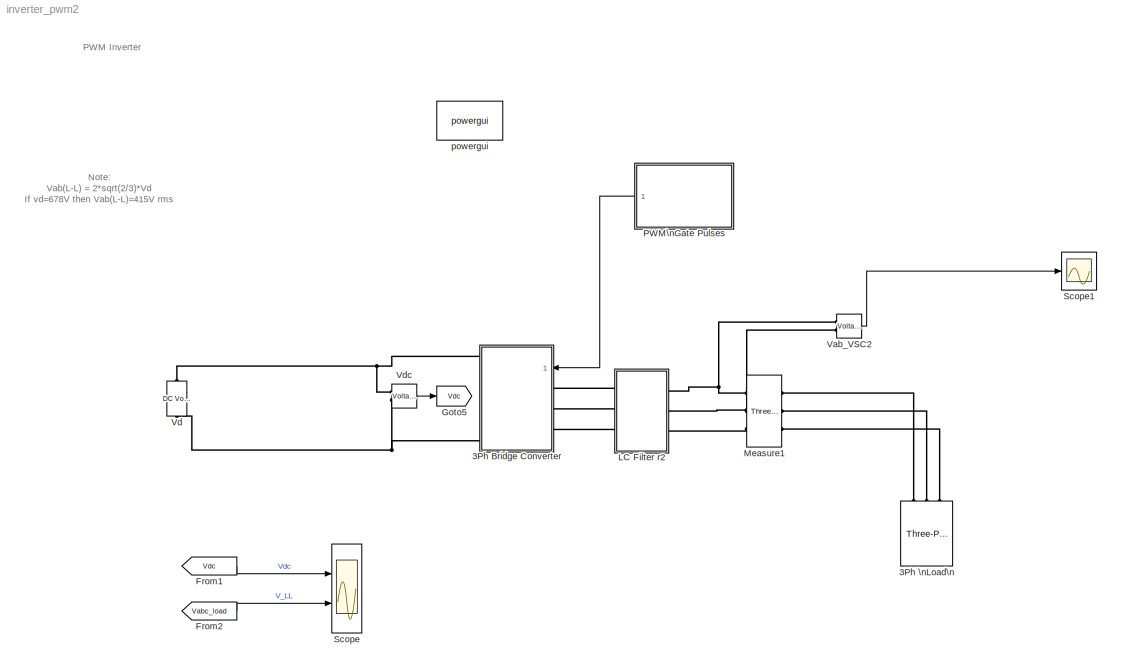
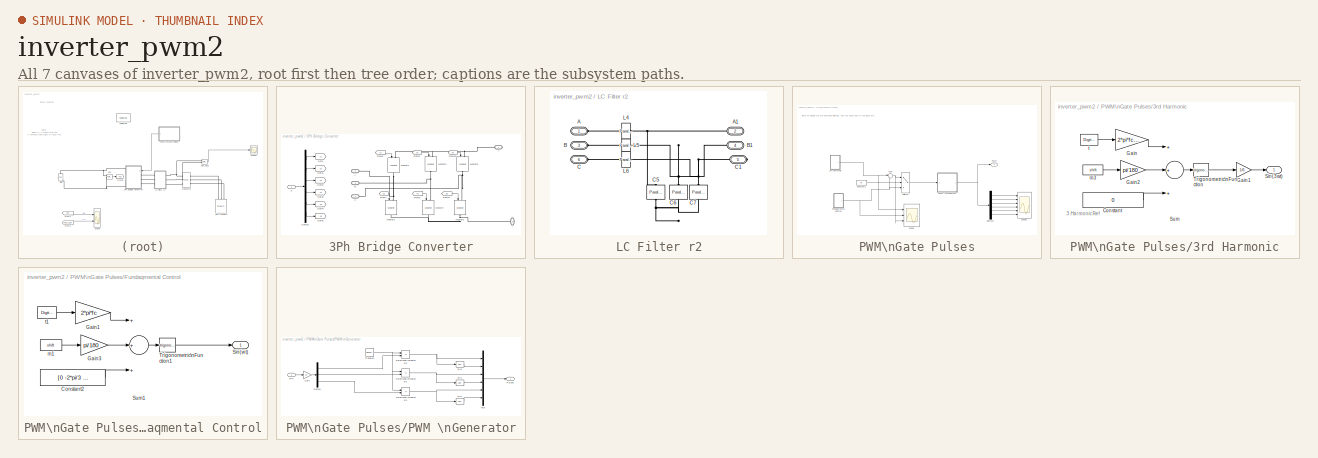
[diagram: thumbnail index - all 7 canvases of the model, root first then tree order]
MODEL inverter_pwm2
KIND model
CONFIG StopFcn = T= ScopeData.time;\nV_DC= ScopeData.signals(1,1).values;\nV_LL=ScopeData2.signals.values;\nsubplot(2,1,1);\nplot(T,V_LL);title('Line to Line Voltage Vab','fontsize',16);xlabel('t');ylabel('V');grid on;\nsubplot(2,1,2);\nplot(T,V_DC);title('DC link Voltage Vdc','fontsize',16);xlabel('t');ylabel('V');grid on;\n
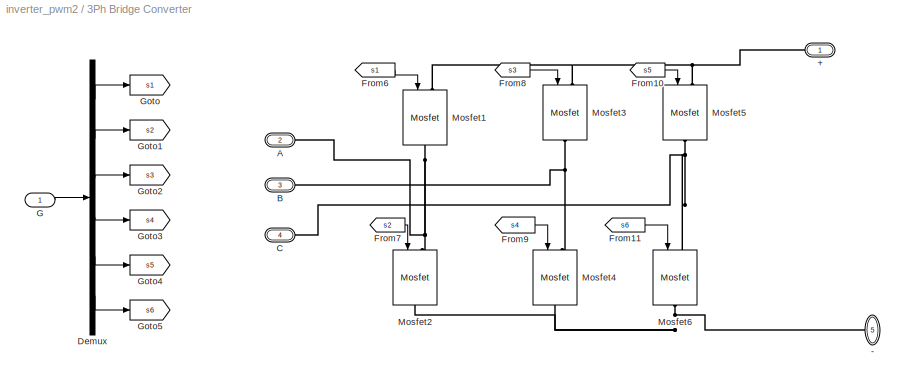
BLOCK [SubSystem] 3Ph Bridge Converter
  Ports = [1, 0, 0, 0, 0, 3, 2]
  RequestExecContextInheritance = off
  SID = 356
BLOCK [PMIOPort] 3Ph Bridge Converter/+
  SID = 377
  Side = Right
BLOCK [PMIOPort] 3Ph Bridge Converter/-
  Port = 5
  SID = 381
  Side = Right
BLOCK [PMIOPort] 3Ph Bridge Converter/A
  Port = 2
  SID = 378
  Side = Left
BLOCK [PMIOPort] 3Ph Bridge Converter/B
  Port = 3
  SID = 379
  Side = Left
BLOCK [PMIOPort] 3Ph Bridge Converter/C
  Port = 4
  SID = 380
  Side = Left
BLOCK [Demux] 3Ph Bridge Converter/Demux
  DisplayOption = bar
  Outputs = 6
  Ports = [1, 6]
  SID = 358
BLOCK [From] 3Ph Bridge Converter/From10
  CloseFcn = tagdialog Close
  GotoTag = s5
  SID = 359
BLOCK [From] 3Ph Bridge Converter/From11
  CloseFcn = tagdialog Close
  GotoTag = s6
  SID = 360
BLOCK [From] 3Ph Bridge Converter/From6
  CloseFcn = tagdialog Close
  GotoTag = s1
  SID = 361
BLOCK [From] 3Ph Bridge Converter/From7
  CloseFcn = tagdialog Close
  GotoTag = s2
  SID = 362
BLOCK [From] 3Ph Bridge Converter/From8
  CloseFcn = tagdialog Close
  GotoTag = s3
  SID = 363
BLOCK [From] 3Ph Bridge Converter/From9
  CloseFcn = tagdialog Close
  GotoTag = s4
  SID = 364
BLOCK [Inport] 3Ph Bridge Converter/G
  IconDisplay = Port number
  SID = 357
BLOCK [Goto] 3Ph Bridge Converter/Goto
  GotoTag = s1
  SID = 365
BLOCK [Goto] 3Ph Bridge Converter/Goto1
  GotoTag = s2
  SID = 366
BLOCK [Goto] 3Ph Bridge Converter/Goto2
  GotoTag = s3
  SID = 367
BLOCK [Goto] 3Ph Bridge Converter/Goto3
  GotoTag = s4
  SID = 368
BLOCK [Goto] 3Ph Bridge Converter/Goto4
  GotoTag = s5
  SID = 369
BLOCK [Goto] 3Ph Bridge Converter/Goto5
  GotoTag = s6
  SID = 370
BLOCK [Reference] 3Ph Bridge Converter/Mosfet1  REF=powerlib/Power\nElectronics/Mosfet
  Cs = inf
  IC = 0
  Lon = 0
  Measurements = off
  Ports = [1, 0, 0, 0, 0, 1, 1]
  Rd = 0.01
  Ron = 0.1
  Rs = 1e5
  SID = 371
  SourceBlock = powerlib/Power\nElectronics/Mosfet
  SourceProductBaseCode = PS
  SourceProductName = Simscape Electrical
  SourceType = Mosfet
  Vfd = 0
BLOCK [Reference] 3Ph Bridge Converter/Mosfet2  REF=powerlib/Power\nElectronics/Mosfet
  Cs = inf
  IC = 0
  Lon = 0
  Measurements = off
  Ports = [1, 0, 0, 0, 0, 1, 1]
  Rd = 0.01
  Ron = 0.1
  Rs = 1e5
  SID = 372
  SourceBlock = powerlib/Power\nElectronics/Mosfet
  SourceProductBaseCode = PS
  SourceProductName = Simscape Electrical
  SourceType = Mosfet
  Vfd = 0
BLOCK [Reference] 3Ph Bridge Converter/Mosfet3  REF=powerlib/Power\nElectronics/Mosfet
  Cs = inf
  IC = 0
  Lon = 0
  Measurements = off
  Ports = [1, 0, 0, 0, 0, 1, 1]
  Rd = 0.01
  Ron = 0.1
  Rs = 1e5
  SID = 375
  SourceBlock = powerlib/Power\nElectronics/Mosfet
  SourceProductBaseCode = PS
  SourceProductName = Simscape Electrical
  SourceType = Mosfet
  Vfd = 0
BLOCK [Reference] 3Ph Bridge Converter/Mosfet4  REF=powerlib/Power\nElectronics/Mosfet
  Cs = inf
  IC = 0
  Lon = 0
  Measurements = off
  Ports = [1, 0, 0, 0, 0, 1, 1]
  Rd = 0.01
  Ron = 0.1
  Rs = 1e5
  SID = 376
  SourceBlock = powerlib/Power\nElectronics/Mosfet
  SourceProductBaseCode = PS
  SourceProductName = Simscape Electrical
  SourceType = Mosfet
  Vfd = 0
BLOCK [Reference] 3Ph Bridge Converter/Mosfet5  REF=powerlib/Power\nElectronics/Mosfet
  Cs = inf
  IC = 0
  Lon = 0
  Measurements = off
  Ports = [1, 0, 0, 0, 0, 1, 1]
  Rd = 0.01
  Ron = 0.1
  Rs = 1e5
  SID = 374
  SourceBlock = powerlib/Power\nElectronics/Mosfet
  SourceProductBaseCode = PS
  SourceProductName = Simscape Electrical
  SourceType = Mosfet
  Vfd = 0
BLOCK [Reference] 3Ph Bridge Converter/Mosfet6  REF=powerlib/Power\nElectronics/Mosfet
  Cs = inf
  IC = 0
  Lon = 0
  Measurements = off
  Ports = [1, 0, 0, 0, 0, 1, 1]
  Rd = 0.01
  Ron = 0.1
  Rs = 1e5
  SID = 373
  SourceBlock = powerlib/Power\nElectronics/Mosfet
  SourceProductBaseCode = PS
  SourceProductName = Simscape Electrical
  SourceType = Mosfet
  Vfd = 0
BLOCK [Reference] 3Ph \nLoad\n  REF=powerlib/Elements/Three-Phase\nParallel RLC Load
  ActivePower = 5e3
  AttributesFormatString = \\n
  CapacitivePower = 0
  Configuration = Y (floating)
  InductivePower = 0
  LConnTagsString = A|B|C
  LoadType = constant Z
  Measurements = None
  NominalFrequency = 50
  NominalVoltage = 415
  Ports = [0, 0, 0, 0, 0, 3]
  SID = 519
  SourceBlock = powerlib/Elements/Three-Phase\nParallel RLC Load
  SourceProductBaseCode = PS
  SourceProductName = Simscape Electrical
  SourceType = Three-Phase Parallel RLC Load
BLOCK [From] From1
  GotoTag = Vdc
  SID = 43
  TagVisibility = global
BLOCK [From] From2
  GotoTag = Vabc_load
  SID = 235
  TagVisibility = global
BLOCK [Goto] Goto5
  GotoTag = Vdc
  SID = 21
  TagVisibility = global
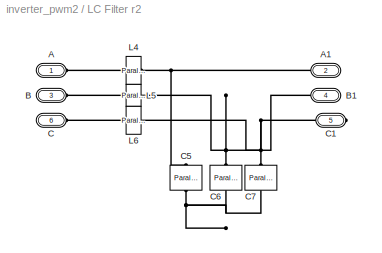
BLOCK [SubSystem] LC Filter r2
  Ports = [0, 0, 0, 0, 0, 3, 3]
  RequestExecContextInheritance = off
  SID = 290
BLOCK [PMIOPort] LC Filter r2/A
  SID = 297
  Side = Left
BLOCK [PMIOPort] LC Filter r2/A1
  Port = 2
  SID = 298
  Side = Right
BLOCK [PMIOPort] LC Filter r2/B
  Port = 3
  SID = 299
  Side = Left
BLOCK [PMIOPort] LC Filter r2/B1
  Port = 4
  SID = 300
  Side = Right
BLOCK [PMIOPort] LC Filter r2/C
  Port = 6
  SID = 302
  Side = Left
BLOCK [PMIOPort] LC Filter r2/C1
  Port = 5
  SID = 301
  Side = Right
BLOCK [Reference] LC Filter r2/C5  REF=powerlib/Elements/Parallel RLC Branch
  AttributesFormatString = \\n
  BranchType = C
  Capacitance = C
  Inductance = inf
  InitialCurrent = 0
  InitialVoltage = 0
  LConnTagsString = a
  Measurements = None
  Ports = [0, 0, 0, 0, 0, 1, 1]
  RConnTagsString = __new0
  Resistance = inf
  SID = 291
  SetiL0 = off
  Setx0 = off
  SourceBlock = powerlib/Elements/Parallel RLC Branch
  SourceProductBaseCode = PS
  SourceProductName = Simscape Electrical
  SourceType = Parallel RLC Branch
BLOCK [Reference] LC Filter r2/C6  REF=powerlib/Elements/Parallel RLC Branch
  AttributesFormatString = \\n
  BranchType = C
  Capacitance = C
  Inductance = inf
  InitialCurrent = 0
  InitialVoltage = 0
  LConnTagsString = a
  Measurements = None
  Ports = [0, 0, 0, 0, 0, 1, 1]
  RConnTagsString = __new0
  Resistance = inf
  SID = 292
  SetiL0 = off
  Setx0 = off
  SourceBlock = powerlib/Elements/Parallel RLC Branch
  SourceProductBaseCode = PS
  SourceProductName = Simscape Electrical
  SourceType = Parallel RLC Branch
BLOCK [Reference] LC Filter r2/C7  REF=powerlib/Elements/Parallel RLC Branch
  AttributesFormatString = \\n
  BranchType = C
  Capacitance = C
  Inductance = inf
  InitialCurrent = 0
  InitialVoltage = 0
  LConnTagsString = a
  Measurements = None
  Ports = [0, 0, 0, 0, 0, 1, 1]
  RConnTagsString = __new0
  Resistance = inf
  SID = 293
  SetiL0 = off
  Setx0 = off
  SourceBlock = powerlib/Elements/Parallel RLC Branch
  SourceProductBaseCode = PS
  SourceProductName = Simscape Electrical
  SourceType = Parallel RLC Branch
BLOCK [Reference] LC Filter r2/L4  REF=powerlib/Elements/Parallel RLC Branch
  AttributesFormatString = \\n
  BranchType = L
  Capacitance = 1.3e-3
  Inductance = L
  InitialCurrent = 0
  InitialVoltage = 0
  LConnTagsString = a
  Measurements = None
  Ports = [0, 0, 0, 0, 0, 1, 1]
  RConnTagsString = __new0
  Resistance = inf
  SID = 294
  SetiL0 = off
  Setx0 = off
  SourceBlock = powerlib/Elements/Parallel RLC Branch
  SourceProductBaseCode = PS
  SourceProductName = Simscape Electrical
  SourceType = Parallel RLC Branch
BLOCK [Reference] LC Filter r2/L5  REF=powerlib/Elements/Parallel RLC Branch
  AttributesFormatString = \\n
  BranchType = L
  Capacitance = 1.3e-3
  Inductance = L
  InitialCurrent = 0
  InitialVoltage = 0
  LConnTagsString = a
  Measurements = None
  Ports = [0, 0, 0, 0, 0, 1, 1]
  RConnTagsString = __new0
  Resistance = inf
  SID = 295
  SetiL0 = off
  Setx0 = off
  SourceBlock = powerlib/Elements/Parallel RLC Branch
  SourceProductBaseCode = PS
  SourceProductName = Simscape Electrical
  SourceType = Parallel RLC Branch
BLOCK [Reference] LC Filter r2/L6  REF=powerlib/Elements/Parallel RLC Branch
  AttributesFormatString = \\n
  BranchType = L
  Capacitance = 1.3e-3
  Inductance = L
  InitialCurrent = 0
  InitialVoltage = 0
  LConnTagsString = a
  Measurements = None
  Ports = [0, 0, 0, 0, 0, 1, 1]
  RConnTagsString = __new0
  Resistance = inf
  SID = 296
  SetiL0 = off
  Setx0 = off
  SourceBlock = powerlib/Elements/Parallel RLC Branch
  SourceProductBaseCode = PS
  SourceProductName = Simscape Electrical
  SourceType = Parallel RLC Branch
BLOCK [Reference] Measure1  REF=powerlib/Measurements/Three-Phase\nV-I Measurement
  CurrentMeasurement = no
  Ipu = off
  LabelI = I1
  LabelV = Vabc_load
  OutputType = Magnitude
  PSBequivalent = 0
  Pbase = 1e3
  PhasorSimulation = off
  Ports = [0, 0, 0, 0, 0, 3, 3]
  SID = 205
  SetLabelI = off
  SetLabelV = on
  SourceBlock = powerlib/Measurements/Three-Phase\nV-I Measurement
  SourceProductBaseCode = PS
  SourceProductName = Simscape Electrical
  SourceType = Three-Phase VI Measurement
  Vbase = 380
  VoltageMeasurement = phase-to-phase
  Vpu = off
  VpuLL = off
BLOCK [SubSystem] PWM\nGate Pulses
  Ports = [0, 1]
  RequestExecContextInheritance = off
  SID = 382
BLOCK [SubSystem] PWM\nGate Pulses/3rd Harmonic
  Ports = [0, 1]
  RequestExecContextInheritance = off
  SID = 529
BLOCK [Constant] PWM\nGate Pulses/3rd Harmonic/Constant
  SID = 530
  SampleTime = Ts
  Value = 0
BLOCK [Gain] PWM\nGate Pulses/3rd Harmonic/Gain
  Gain = 2*pi*fc*3
  SID = 531
BLOCK [Gain] PWM\nGate Pulses/3rd Harmonic/Gain1
  Gain = 1/6
  OutDataTypeStr = Inherit: Inherit via internal rule
  ParamDataTypeStr = Inherit: Inherit via internal rule
  SID = 532
  SaturateOnIntegerOverflow = off
BLOCK [Gain] PWM\nGate Pulses/3rd Harmonic/Gain2
  Gain = pi/180
  SID = 533
BLOCK [Outport] PWM\nGate Pulses/3rd Harmonic/Sin(3wt)
  IconDisplay = Port number
  SID = 538
BLOCK [Sum] PWM\nGate Pulses/3rd Harmonic/Sum
  Inputs = +++
  Ports = [3, 1]
  SID = 534
  SampleTime = Ts
BLOCK [Trigonometry] PWM\nGate Pulses/3rd Harmonic/Trigonometric\nFunction
  Ports = [1, 1]
  SID = 535
  SampleTime = Ts
BLOCK [Constant] PWM\nGate Pulses/3rd Harmonic/m3
  SID = 536
  SampleTime = Ts
  Value = shift
BLOCK [DigitalClock] PWM\nGate Pulses/3rd Harmonic/t
  SID = 537
  SampleTime = Ts
BLOCK [Constant] PWM\nGate Pulses/Constant1
  SID = 540
  SampleTime = Ts
  Value = inj
BLOCK [Demux] PWM\nGate Pulses/Demux1
  DisplayOption = bar
  Outputs = 6
  Ports = [1, 6]
  SID = 472
BLOCK [SubSystem] PWM\nGate Pulses/Fundaqmental Control
  Ports = [0, 1]
  RequestExecContextInheritance = off
  SID = 541
BLOCK [Constant] PWM\nGate Pulses/Fundaqmental Control/Constant2
  SID = 542
  SampleTime = Ts
  Value = [0 -2*pi/3 2*pi/3]
BLOCK [Gain] PWM\nGate Pulses/Fundaqmental Control/Gain1
  Gain = 2*pi*fc
  SID = 543
BLOCK [Gain] PWM\nGate Pulses/Fundaqmental Control/Gain3
  Gain = pi/180
  SID = 544
BLOCK [Outport] PWM\nGate Pulses/Fundaqmental Control/Sin(wt)
  IconDisplay = Port number
  SID = 549
BLOCK [Sum] PWM\nGate Pulses/Fundaqmental Control/Sum1
  Inputs = +++
  Ports = [3, 1]
  SID = 545
  SampleTime = Ts
BLOCK [Trigonometry] PWM\nGate Pulses/Fundaqmental Control/Trigonometric\nFunction1
  Ports = [1, 1]
  SID = 546
  SampleTime = Ts
BLOCK [Constant] PWM\nGate Pulses/Fundaqmental Control/m1
  SID = 547
  SampleTime = Ts
  Value = shift
BLOCK [DigitalClock] PWM\nGate Pulses/Fundaqmental Control/t1
  SID = 548
  SampleTime = Ts
BLOCK [Outport] PWM\nGate Pulses/PWM
  IconDisplay = Port number
  SID = 489
BLOCK [SubSystem] PWM\nGate Pulses/PWM \nGenerator
  InitFcn = Ts=2e-6
  Ports = [1, 1]
  RequestExecContextInheritance = off
  SID = 474
BLOCK [Inport] PWM\nGate Pulses/PWM \nGenerator/3Ph
  IconDisplay = Port number
  SID = 475
BLOCK [Logic] PWM\nGate Pulses/PWM \nGenerator/BL1
  Inputs = 1
  Operator = NOT
  Ports = [1, 1]
  SID = 476
  SampleTime = Ts
BLOCK [Logic] PWM\nGate Pulses/PWM \nGenerator/BL2
  Inputs = 1
  Operator = NOT
  Ports = [1, 1]
  SID = 477
  SampleTime = Ts
BLOCK [Logic] PWM\nGate Pulses/PWM \nGenerator/BL5
  Inputs = 1
  Operator = NOT
  Ports = [1, 1]
  SID = 478
  SampleTime = Ts
BLOCK [Demux] PWM\nGate Pulses/PWM \nGenerator/Demux
  DisplayOption = bar
  Outputs = 3
  Ports = [1, 3]
  SID = 479
BLOCK [Gain] PWM\nGate Pulses/PWM \nGenerator/Gain
  Gain = m
  OutDataTypeStr = Inherit: Inherit via internal rule
  ParamDataTypeStr = Inherit: Inherit via internal rule
  SID = 480
  SaturateOnIntegerOverflow = off
BLOCK [Mux] PWM\nGate Pulses/PWM \nGenerator/Mux
  DisplayOption = bar
  Inputs = 6
  Ports = [6, 1]
  SID = 481
BLOCK [Outport] PWM\nGate Pulses/PWM \nGenerator/Pulses
  IconDisplay = Port number
  SID = 486
BLOCK [RelationalOperator] PWM\nGate Pulses/PWM \nGenerator/Relational\nOperator1
  InputSameDT = off
  Operator = <=
  Ports = [2, 1]
  SID = 482
BLOCK [RelationalOperator] PWM\nGate Pulses/PWM \nGenerator/Relational\nOperator2
  InputSameDT = off
  Operator = <=
  Ports = [2, 1]
  SID = 483
BLOCK [RelationalOperator] PWM\nGate Pulses/PWM \nGenerator/Relational\nOperator3
  InputSameDT = off
  Operator = <=
  Ports = [2, 1]
  SID = 484
BLOCK [Reference] PWM\nGate Pulses/PWM \nGenerator/Triangle2  REF=simulink/Sources/Repeating\nSequence
  Ports = [0, 1]
  SID = 485
  SourceBlock = simulink/Sources/Repeating\nSequence
  SourceProductBaseCode = SL
  SourceProductName = Simulink
  SourceType = Repeating table
  rep_seq_t = [0 1/fs/4 3/fs/4 1/fs]
  rep_seq_y = [0 -1 1 0]
BLOCK [Scope] PWM\nGate Pulses/Scope
  Floating = off
  NumInputPorts = 3
  Ports = [3]
  SID = 550
  ScopeSpecificationString = C++SS(StrPVP('Location','[1, 53, 1921, 1031]'),StrPVP('Open','off'),MxPVP('AxesTitles',54,'struct(''axes1'',''%<SignalLabel>'',''axes2'',''%<SignalLabel>'',''axes3'',''%<SignalLabel>'')'),StrPVP('YMin','-1~-1.25~-5'),StrPVP('YMax','1~1.25~5'),StrPVP('SaveName','ScopeData3'),StrPVP('DataFormat','StructureWithTime'),StrPVP('BlockParamSampleTime','0'),StrPVP('LimitDataPoints','on'),StrPVP('Decimation...<+45ch>
BLOCK [Scope] PWM\nGate Pulses/Scope1
  Floating = off
  NumInputPorts = 6
  Ports = [6]
  SID = 487
  ScopeSpecificationString = C++SS(StrPVP('Location','[188, 390, 512, 629]'),StrPVP('Open','off'),MxPVP('AxesTitles',54,'struct(''axes1'',''%<SignalLabel>'',''axes2'',''%<SignalLabel>'',''axes3'',''%<SignalLabel>'',''axes4'',''%<SignalLabel>'',''axes5'',''%<SignalLabel>'',''axes6'',''%<SignalLabel>'')'),StrPVP('YMin','-5~-5~-5~-5~-5~-5'),StrPVP('YMax','5~5~5~5~5~5'),StrPVP('SaveName','ScopeData1'),StrPVP('DataFormat','Structu...<+143ch>
BLOCK [Sum] PWM\nGate Pulses/Sum
  IconShape = round
  InputSameDT = off
  Inputs = |++
  OutDataTypeStr = Inherit: Inherit via internal rule
  Ports = [2, 1]
  SID = 551
  SaturateOnIntegerOverflow = off
BLOCK [Switch] PWM\nGate Pulses/Switch1
  SID = 552
  SampleTime = Ts
  Threshold = 0.5
BLOCK [Scope] Scope
  Floating = off
  NumInputPorts = 2
  Ports = [2]
  SID = 47
  ScopeSpecificationString = C++SS(StrPVP('Location','[5, 53, 1919, 1031]'),StrPVP('Open','off'),StrPVP('ZoomMode','xonly'),MxPVP('AxesTitles',54,'struct(''axes1'',''%<SignalLabel>'',''axes2'',''%<SignalLabel>'')'),StrPVP('YMin','-5~-5'),StrPVP('YMax','5~5'),StrPVP('SaveToWorkspace','on'),StrPVP('DataFormat','StructureWithTime'),StrPVP('MaxDataPoints','1000000'),StrPVP('BlockParamSampleTime','0'),StrPVP('LimitDataPoints','on'...<+65ch>
BLOCK [Scope] Scope1
  Floating = off
  NumInputPorts = 1
  Ports = [1]
  SID = 204
  ScopeSpecificationString = C++SS(StrPVP('Location','[906, 140, 1742, 879]'),StrPVP('Open','off'),StrPVP('ZoomMode','xonly'),MxPVP('AxesTitles',54,'struct(''axes1'',''%<SignalLabel>'')'),StrPVP('SaveToWorkspace','on'),StrPVP('SaveName','ScopeData2'),StrPVP('DataFormat','StructureWithTime'),StrPVP('LimitDataPoints','off'),StrPVP('BlockParamSampleTime','0'),StrPVP('Decimation','1'),StrPVP('BlockParamSampleInput','off'))
BLOCK [Reference] Vab_VSC2  REF=powerlib/Measurements/Voltage Measurement
  AttributesFormatString = \\n
  OutputType = Magnitude
  PSBequivalent = 0
  PhasorSimulation = off
  Ports = [0, 1, 0, 0, 0, 2]
  SID = 42
  SourceBlock = powerlib/Measurements/Voltage Measurement
  SourceProductBaseCode = PS
  SourceProductName = Simscape Electrical
  SourceType = Voltage Measurement
  Tag = PoWeRsYsTeMmEaSuReMeNt
BLOCK [Reference] Vd  REF=powerlib/Electrical\nSources/DC Voltage Source
  Amplitude = 415*2*sqrt(2/3)
  Measurements = None
  Ports = [0, 0, 0, 0, 0, 1, 1]
  SID = 49
  SourceBlock = powerlib/Electrical\nSources/DC Voltage Source
  SourceProductBaseCode = PS
  SourceProductName = Simscape Electrical
  SourceType = DC Voltage Source
BLOCK [Reference] Vdc   REF=powerlib/Measurements/Voltage Measurement
  AttributesFormatString = \\n
  OutputType = Magnitude
  PSBequivalent = 0
  PhasorSimulation = off
  Ports = [0, 1, 0, 0, 0, 2]
  SID = 23
  SourceBlock = powerlib/Measurements/Voltage Measurement
  SourceProductBaseCode = PS
  SourceProductName = Simscape Electrical
  SourceType = Voltage Measurement
  Tag = PoWeRsYsTeMmEaSuReMeNt
BLOCK [Reference] powergui  REF=powerlib/powergui
  DisableRonSwitches = off
  DisableSnubberDevices = off
  DisableVfSwitches = off
  DisplayEquations = off
  DisplayStyle = 4
  EnableUseOfTLC = off
  ErrMax = 1e-4
  FreqAxis = on
  FunctionMessages = off
  HookPort = off
  Interpol = off
  Iterations = 50
  MaxFrequency = 650
  Pbase = 100e6
  Ports = []
  Priority = 1
  ResistiveCurrentMeasurement = off
  RestoreLinks = warning
  SID = 2
  SPID = on
  SampleTime = 50e-6
  ShowGrid = off
  SolverType = Tustin
  SourceBlock = powerlib/powergui
  SourceProductBaseCode = PS
  SourceProductName = Simscape Electrical
  SourceType = PSB option menu block
  StartTime = 0.6
  SwTol = 0
  UnitsV = kV
  UnitsW = MW
  UserData = DataTag0
  UserDataPersistent = on
  Xlog = on
  Ylog = off
  ZoomFFT = off
  cycles = 4
  display = off
  echomessages = off
  frequency = 60
  frequencyindice = 0
  frequencyindicesteady = 1
  fundamental = 50
  methode = off
  save = off
  structure = ScopeData2
  variable = ZData
  x0status = blocks
ANNOTATION (root): Note:\nVab(L-L) = 2*sqrt(2/3)*Vd\nIf vd=678V then Vab(L-L)=415V rms
ANNOTATION (root): PWM Inverter
ANNOTATION PWM\nGate Pulses: Note:To enable the 3rd Harmonic injection, tick the check box of the block properties
ANNOTATION PWM\nGate Pulses/3rd Harmonic: 3 Harmonic Ref
LINE 3Ph Bridge Converter/Demux:1 -> 3Ph Bridge Converter/Goto:1
LINE 3Ph Bridge Converter/Demux:2 -> 3Ph Bridge Converter/Goto1:1
LINE 3Ph Bridge Converter/Demux:3 -> 3Ph Bridge Converter/Goto2:1
LINE 3Ph Bridge Converter/Demux:4 -> 3Ph Bridge Converter/Goto3:1
LINE 3Ph Bridge Converter/Demux:5 -> 3Ph Bridge Converter/Goto4:1
LINE 3Ph Bridge Converter/Demux:6 -> 3Ph Bridge Converter/Goto5:1
LINE 3Ph Bridge Converter/From10:1 -> 3Ph Bridge Converter/Mosfet5:1
LINE 3Ph Bridge Converter/From11:1 -> 3Ph Bridge Converter/Mosfet6:1
LINE 3Ph Bridge Converter/From6:1 -> 3Ph Bridge Converter/Mosfet1:1
LINE 3Ph Bridge Converter/From7:1 -> 3Ph Bridge Converter/Mosfet2:1
LINE 3Ph Bridge Converter/From8:1 -> 3Ph Bridge Converter/Mosfet3:1
LINE 3Ph Bridge Converter/From9:1 -> 3Ph Bridge Converter/Mosfet4:1
LINE 3Ph Bridge Converter/G:1 -> 3Ph Bridge Converter/Demux:1
LINE From1:1 -> Scope:1
LINE From2:1 -> Scope:2
LINE PWM\nGate Pulses/3rd Harmonic/Constant:1 -> PWM\nGate Pulses/3rd Harmonic/Sum:3
LINE PWM\nGate Pulses/3rd Harmonic/Gain1:1 -> PWM\nGate Pulses/3rd Harmonic/Sin(3wt):1
LINE PWM\nGate Pulses/3rd Harmonic/Gain2:1 -> PWM\nGate Pulses/3rd Harmonic/Sum:2
LINE PWM\nGate Pulses/3rd Harmonic/Gain:1 -> PWM\nGate Pulses/3rd Harmonic/Sum:1
LINE PWM\nGate Pulses/3rd Harmonic/Sum:1 -> PWM\nGate Pulses/3rd Harmonic/Trigonometric\nFunction:1
LINE PWM\nGate Pulses/3rd Harmonic/Trigonometric\nFunction:1 -> PWM\nGate Pulses/3rd Harmonic/Gain1:1
LINE PWM\nGate Pulses/3rd Harmonic/m3:1 -> PWM\nGate Pulses/3rd Harmonic/Gain2:1
LINE PWM\nGate Pulses/3rd Harmonic/t:1 -> PWM\nGate Pulses/3rd Harmonic/Gain:1
NET PWM\nGate Pulses/3rd Harmonic:1 -> PWM\nGate Pulses/Scope:1, PWM\nGate Pulses/Sum:1
LINE PWM\nGate Pulses/Constant1:1 -> PWM\nGate Pulses/Switch1:2
LINE PWM\nGate Pulses/Demux1:1 -> PWM\nGate Pulses/Scope1:1
LINE PWM\nGate Pulses/Demux1:2 -> PWM\nGate Pulses/Scope1:2
LINE PWM\nGate Pulses/Demux1:3 -> PWM\nGate Pulses/Scope1:3
LINE PWM\nGate Pulses/Demux1:4 -> PWM\nGate Pulses/Scope1:4
LINE PWM\nGate Pulses/Demux1:5 -> PWM\nGate Pulses/Scope1:5
LINE PWM\nGate Pulses/Demux1:6 -> PWM\nGate Pulses/Scope1:6
LINE PWM\nGate Pulses/Fundaqmental Control/Constant2:1 -> PWM\nGate Pulses/Fundaqmental Control/Sum1:3
LINE PWM\nGate Pulses/Fundaqmental Control/Gain1:1 -> PWM\nGate Pulses/Fundaqmental Control/Sum1:1
LINE PWM\nGate Pulses/Fundaqmental Control/Gain3:1 -> PWM\nGate Pulses/Fundaqmental Control/Sum1:2
LINE PWM\nGate Pulses/Fundaqmental Control/Sum1:1 -> PWM\nGate Pulses/Fundaqmental Control/Trigonometric\nFunction1:1
LINE PWM\nGate Pulses/Fundaqmental Control/Trigonometric\nFunction1:1 -> PWM\nGate Pulses/Fundaqmental Control/Sin(wt):1
LINE PWM\nGate Pulses/Fundaqmental Control/m1:1 -> PWM\nGate Pulses/Fundaqmental Control/Gain3:1
LINE PWM\nGate Pulses/Fundaqmental Control/t1:1 -> PWM\nGate Pulses/Fundaqmental Control/Gain1:1
NET PWM\nGate Pulses/Fundaqmental Control:1 -> PWM\nGate Pulses/Scope:2, PWM\nGate Pulses/Sum:2, PWM\nGate Pulses/Switch1:3
LINE PWM\nGate Pulses/PWM \nGenerator/3Ph:1 -> PWM\nGate Pulses/PWM \nGenerator/Gain:1
LINE PWM\nGate Pulses/PWM \nGenerator/BL1:1 -> PWM\nGate Pulses/PWM \nGenerator/Mux:4
LINE PWM\nGate Pulses/PWM \nGenerator/BL2:1 -> PWM\nGate Pulses/PWM \nGenerator/Mux:6
LINE PWM\nGate Pulses/PWM \nGenerator/BL5:1 -> PWM\nGate Pulses/PWM \nGenerator/Mux:2
LINE PWM\nGate Pulses/PWM \nGenerator/Demux:1 -> PWM\nGate Pulses/PWM \nGenerator/Relational\nOperator2:2
LINE PWM\nGate Pulses/PWM \nGenerator/Demux:2 -> PWM\nGate Pulses/PWM \nGenerator/Relational\nOperator1:2
LINE PWM\nGate Pulses/PWM \nGenerator/Demux:3 -> PWM\nGate Pulses/PWM \nGenerator/Relational\nOperator3:2
LINE PWM\nGate Pulses/PWM \nGenerator/Gain:1 -> PWM\nGate Pulses/PWM \nGenerator/Demux:1
LINE PWM\nGate Pulses/PWM \nGenerator/Mux:1 -> PWM\nGate Pulses/PWM \nGenerator/Pulses:1
NET PWM\nGate Pulses/PWM \nGenerator/Relational\nOperator1:1 -> PWM\nGate Pulses/PWM \nGenerator/BL1:1, PWM\nGate Pulses/PWM \nGenerator/Mux:3
NET PWM\nGate Pulses/PWM \nGenerator/Relational\nOperator2:1 -> PWM\nGate Pulses/PWM \nGenerator/BL5:1, PWM\nGate Pulses/PWM \nGenerator/Mux:1
NET PWM\nGate Pulses/PWM \nGenerator/Relational\nOperator3:1 -> PWM\nGate Pulses/PWM \nGenerator/BL2:1, PWM\nGate Pulses/PWM \nGenerator/Mux:5
NET PWM\nGate Pulses/PWM \nGenerator/Triangle2:1 -> PWM\nGate Pulses/PWM \nGenerator/Relational\nOperator1:1, PWM\nGate Pulses/PWM \nGenerator/Relational\nOperator2:1, PWM\nGate Pulses/PWM \nGenerator/Relational\nOperator3:1
NET PWM\nGate Pulses/PWM \nGenerator:1 -> PWM\nGate Pulses/Demux1:1, PWM\nGate Pulses/PWM:1
NET PWM\nGate Pulses/Sum:1 -> PWM\nGate Pulses/Scope:3, PWM\nGate Pulses/Switch1:1
LINE PWM\nGate Pulses/Switch1:1 -> PWM\nGate Pulses/PWM \nGenerator:1
LINE PWM\nGate Pulses:1 -> 3Ph Bridge Converter:1
LINE Vab_VSC2:1 -> Scope1:1
LINE Vdc :1 -> Goto5:1
PNET net1: 3Ph Bridge Converter/+:RConn1 -- 3Ph Bridge Converter/Mosfet1:LConn1 -- 3Ph Bridge Converter/Mosfet3:LConn1 -- 3Ph Bridge Converter/Mosfet5:LConn1
PNET net2: 3Ph Bridge Converter/-:RConn1 -- 3Ph Bridge Converter/Mosfet2:RConn1 -- 3Ph Bridge Converter/Mosfet4:RConn1 -- 3Ph Bridge Converter/Mosfet6:RConn1
PNET net3: 3Ph Bridge Converter/A:RConn1 -- 3Ph Bridge Converter/Mosfet1:RConn1 -- 3Ph Bridge Converter/Mosfet2:LConn1
PNET net4: 3Ph Bridge Converter/B:RConn1 -- 3Ph Bridge Converter/Mosfet3:RConn1 -- 3Ph Bridge Converter/Mosfet4:LConn1
PNET net5: 3Ph Bridge Converter/C:RConn1 -- 3Ph Bridge Converter/Mosfet5:RConn1 -- 3Ph Bridge Converter/Mosfet6:LConn1
PLINE 3Ph Bridge Converter:LConn1 -- LC Filter r2:LConn1
PLINE 3Ph Bridge Converter:LConn2 -- LC Filter r2:LConn2
PLINE 3Ph Bridge Converter:LConn3 -- LC Filter r2:LConn3
PNET net6: 3Ph Bridge Converter:RConn1 -- Vd:RConn1 -- Vdc :LConn1
PNET net7: 3Ph Bridge Converter:RConn2 -- Vd:LConn1 -- Vdc :LConn2
PLINE 3Ph \nLoad\n:LConn1 -- Measure1:RConn1
PLINE 3Ph \nLoad\n:LConn2 -- Measure1:RConn2
PLINE 3Ph \nLoad\n:LConn3 -- Measure1:RConn3
PNET net8: LC Filter r2/A1:RConn1 -- LC Filter r2/C5:LConn1 -- LC Filter r2/L4:RConn1
PLINE LC Filter r2/A:RConn1 -- LC Filter r2/L4:LConn1
PNET net9: LC Filter r2/B1:RConn1 -- LC Filter r2/C6:LConn1 -- LC Filter r2/L5:RConn1
PLINE LC Filter r2/B:RConn1 -- LC Filter r2/L5:LConn1
PNET net10: LC Filter r2/C1:RConn1 -- LC Filter r2/C7:LConn1 -- LC Filter r2/L6:RConn1
PNET net11: LC Filter r2/C5:RConn1 -- LC Filter r2/C6:RConn1 -- LC Filter r2/C7:RConn1
PLINE LC Filter r2/C:RConn1 -- LC Filter r2/L6:LConn1
PNET net12: LC Filter r2:RConn1 -- Measure1:LConn1 -- Vab_VSC2:LConn1
PNET net13: LC Filter r2:RConn2 -- Measure1:LConn2 -- Vab_VSC2:LConn2
PLINE LC Filter r2:RConn3 -- Measure1:LConn3
note: NET lines group one-source signal fan-out (src -> all destinations, sorted); 1:1 wires keep LINE; PNET lines group multi-terminal physical nets as a canonical sorted terminal list (undirected conserving connections); 2-terminal nets keep the pairwise PLINE form
